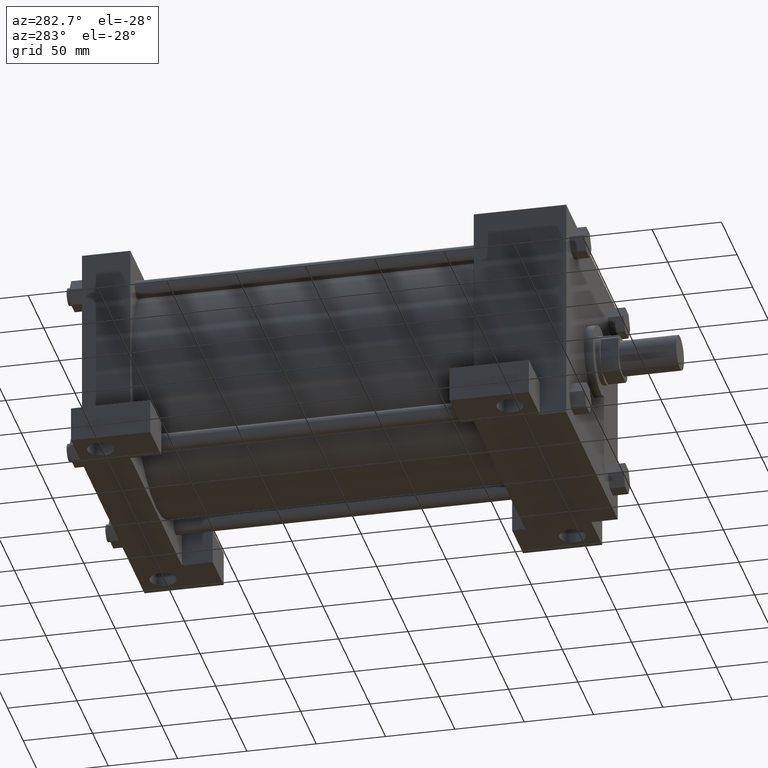
[diagram: clean part render]
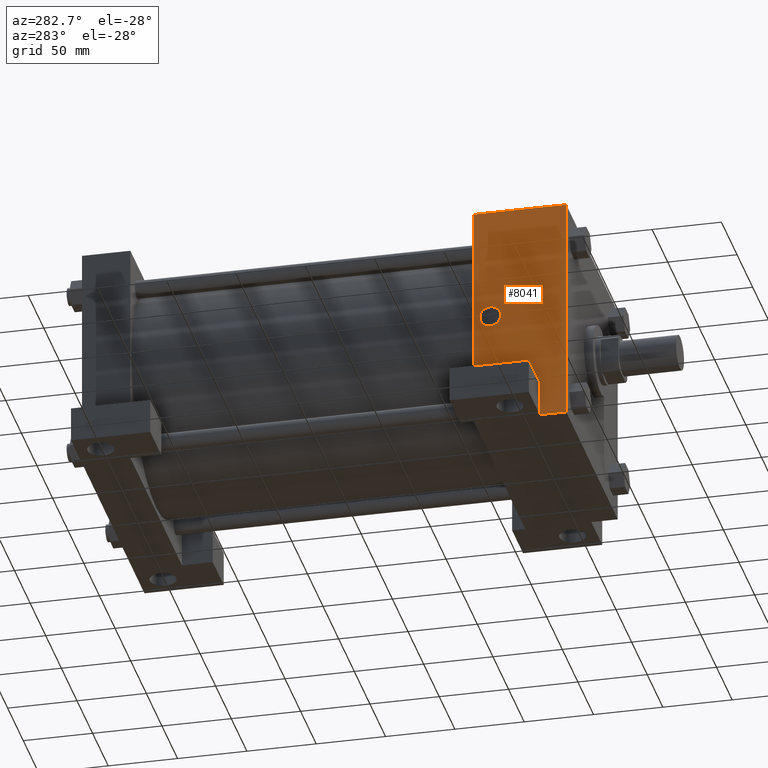
[diagram: same view with one face highlighted and labeled with its STEP entity id]
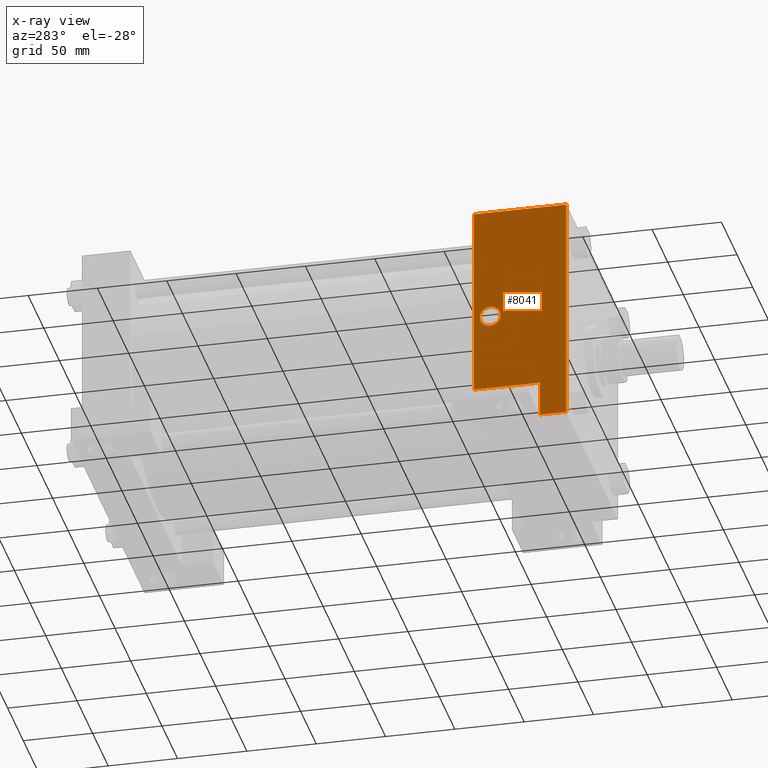
[diagram: x-ray of the same camera — body ghosted, the highlighted face saturated]
A machine part, auxiliary view. The second image highlights one B-rep face of the part: STEP entity #8041.
The next image is the same camera in x-ray: the body ghosted, the highlighted face saturated — about 0% of this face is hidden behind the body in this view.
In plain terms, the highlighted planar face has unit normal (-1, 0, 0).
Its self-contained STEP definition (entity closure, byte-faithful):
#1277=EDGE_CURVE('',#1283,#1283,#1278,.T.);
#1278=CIRCLE('',#1279,7.540625000E+000);
#1279=AXIS2_PLACEMENT_3D('',#1280,#1281,#1282);
#1280=CARTESIAN_POINT('',(-8.255000000E+001,7.699502000E+001,0.000000000E+000));
#1281=DIRECTION('',(1.0E+000,0.0E+000,0.0E+000));
#1282=DIRECTION('',(0.0E+000,0.0E+000,1.0E+000));
#1283=VERTEX_POINT('',#1284);
#1284=CARTESIAN_POINT('',(-8.255000000E+001,7.699502000E+001,7.540625000E+000));
#1543=EDGE_CURVE('',#1548,#1549,#1544,.T.);
#1544=LINE('',#1545,#1546);
#1545=CARTESIAN_POINT('',(-8.255000000E+001,9.842500000E+001,-5.715000000E+001));
#1546=VECTOR('',#1547,1.0E+000);
#1547=DIRECTION('',(0.0E+000,1.0E+000,0.0E+000));
#1548=VERTEX_POINT('',#1550);
#1549=VERTEX_POINT('',#1551);
#1550=CARTESIAN_POINT('',(-8.255000000E+001,4.127500000E+001,-5.715000000E+001));
#1551=CARTESIAN_POINT('',(-8.255000000E+001,8.890000000E+001,-5.715000000E+001));
#1591=VERTEX_POINT('',#1593);
#1593=CARTESIAN_POINT('',(-8.255000000E+001,4.127500000E+001,-8.255000000E+001));
#1594=EDGE_CURVE('',#1548,#1591,#1595,.T.);
#1595=LINE('',#1596,#1597);
#1596=CARTESIAN_POINT('',(-8.255000000E+001,4.127500000E+001,-5.715000000E+001));
#1597=VECTOR('',#1598,1.0E+000);
#1598=DIRECTION('',(0.0E+000,0.0E+000,-1.0E+000));
#1662=LINE('',#1663,#1664);
#1663=CARTESIAN_POINT('',(-8.255000000E+001,8.890000000E+001,8.255000000E+001));
#1664=VECTOR('',#1665,1.0E+000);
#1665=DIRECTION('',(0.0E+000,0.0E+000,-1.0E+000));
#1823=FACE_OUTER_BOUND('',#1825,.T.);
#1824=FACE_BOUND('',#1826,.T.);
#1825=EDGE_LOOP('',(#1827));
#1826=EDGE_LOOP('',(#1828,#1829,#1830,#1831,#1832,#1833));
#1827=ORIENTED_EDGE('',*,*,#1277,.T.);
#1828=ORIENTED_EDGE('',*,*,#1543,.F.);
#1829=ORIENTED_EDGE('',*,*,#1594,.T.);
#1830=ORIENTED_EDGE('',*,*,#1834,.T.);
#1831=ORIENTED_EDGE('',*,*,#1841,.F.);
#1832=ORIENTED_EDGE('',*,*,#1848,.F.);
#1833=ORIENTED_EDGE('',*,*,#1855,.T.);
#1834=EDGE_CURVE('',#1591,#1839,#1835,.T.);
#1835=LINE('',#1836,#1837);
#1836=CARTESIAN_POINT('',(-8.255000000E+001,8.890000000E+001,-8.255000000E+001));
#1837=VECTOR('',#1838,1.0E+000);
#1838=DIRECTION('',(0.0E+000,-1.0E+000,0.0E+000));
#1839=VERTEX_POINT('',#1840);
#1840=CARTESIAN_POINT('',(-8.255000000E+001,2.222500000E+001,-8.255000000E+001));
#1841=EDGE_CURVE('',#1846,#1839,#1842,.T.);
#1842=LINE('',#1843,#1844);
#1843=CARTESIAN_POINT('',(-8.255000000E+001,2.222500000E+001,8.255000000E+001));
#1844=VECTOR('',#1845,1.0E+000);
#1845=DIRECTION('',(0.0E+000,0.0E+000,-1.0E+000));
#1846=VERTEX_POINT('',#1847);
#1847=CARTESIAN_POINT('',(-8.255000000E+001,2.222500000E+001,8.255000000E+001));
#1848=EDGE_CURVE('',#1853,#1846,#1849,.T.);
#1849=LINE('',#1850,#1851);
#1850=CARTESIAN_POINT('',(-8.255000000E+001,8.890000000E+001,8.255000000E+001));
#1851=VECTOR('',#1852,1.0E+000);
#1852=DIRECTION('',(0.0E+000,-1.0E+000,0.0E+000));
#1853=VERTEX_POINT('',#1854);
#1854=CARTESIAN_POINT('',(-8.255000000E+001,8.890000000E+001,8.255000000E+001));
#1855=EDGE_CURVE('',#1853,#1549,#1662,.T.);
#1856=PLANE('',#1857);
#1857=AXIS2_PLACEMENT_3D('',#1858,#1859,#1860);
#1858=CARTESIAN_POINT('',(-8.255000000E+001,8.890000000E+001,8.255000000E+001));
#1859=DIRECTION('',(-1.0E+000,0.0E+000,0.0E+000));
#1860=DIRECTION('',(0.0E+000,0.0E+000,1.0E+000));
#8041=ADVANCED_FACE('',(#1823,#1824),#1856,.T.);